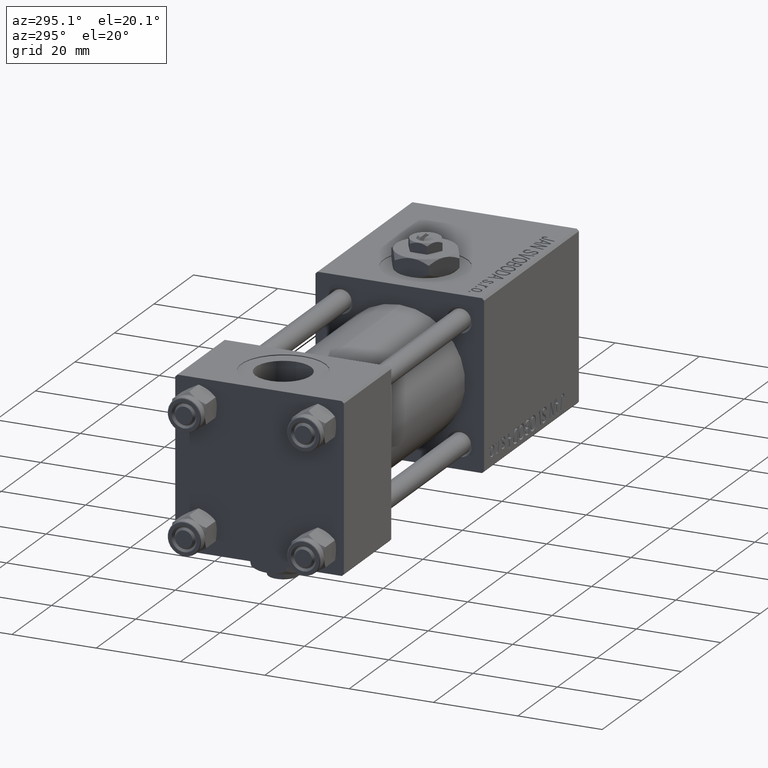
[diagram: clean part render]
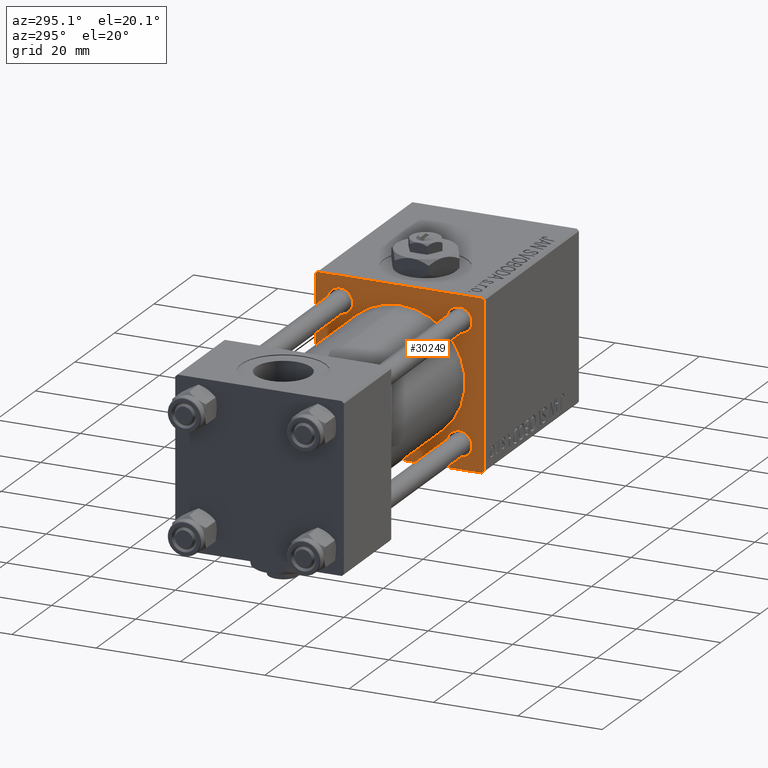
[diagram: same view with one face highlighted and labeled with its STEP entity id]
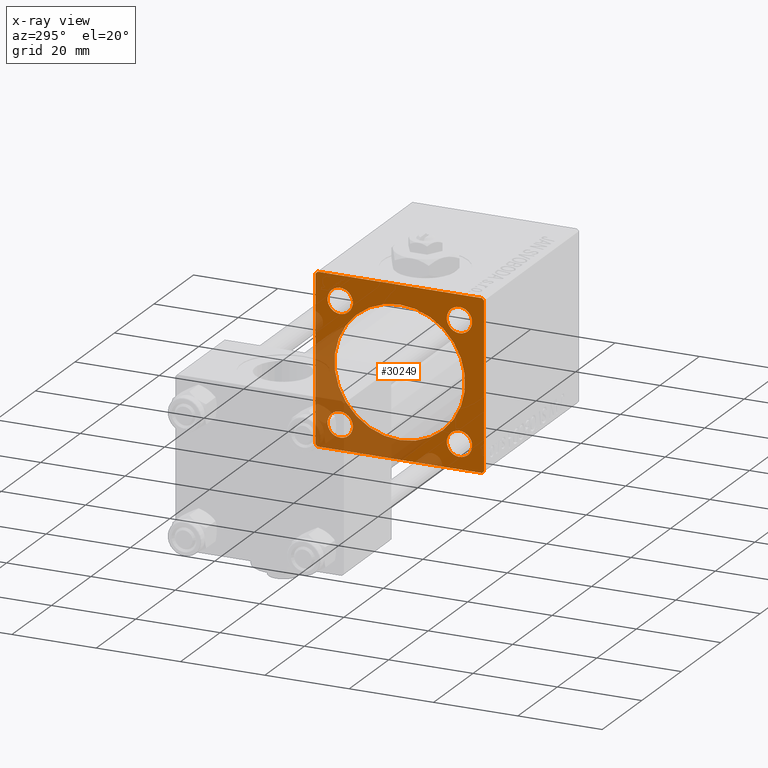
[diagram: x-ray of the same camera — body ghosted, the highlighted face saturated]
A machine part, auxiliary view. The second image highlights one B-rep face of the part: STEP entity #30249.
The next image is the same camera in x-ray: the body ghosted, the highlighted face saturated — about 34% of this face is hidden behind the body in this view.
In plain terms, the highlighted planar face has unit normal (-1, 0, 0).
Its self-contained STEP definition (entity closure, byte-faithful):
#269 = VERTEX_POINT ( 'NONE', #51191 ) ;
#615 = CARTESIAN_POINT ( 'NONE',  ( 71.00000000000001421, -14.15000000000000036, -11.14999999999999680 ) ) ;
#657 = CARTESIAN_POINT ( 'NONE',  ( 71.00000000000001421, -2.602085213965210642E-15, 15.50000000000000000 ) ) ;
#1223 = DIRECTION ( 'NONE',  ( 1.000000000000000000, 0.000000000000000000, 0.000000000000000000 ) ) ;
#1243 = ORIENTED_EDGE ( 'NONE', *, *, #9446, .T. ) ;
#1329 = CIRCLE ( 'NONE', #24086, 3.000000000000004441 ) ;
#1346 = VECTOR ( 'NONE', #46647, 1000.000000000000000 ) ;
#1348 = VERTEX_POINT ( 'NONE', #3505 ) ;
#1828 = CARTESIAN_POINT ( 'NONE',  ( 71.00000000000001421, -2.602085213965210642E-15, 0.000000000000000000 ) ) ;
#3505 = CARTESIAN_POINT ( 'NONE',  ( 71.00000000000001421, 14.15000000000000036, -11.14999999999999680 ) ) ;
#3839 = CIRCLE ( 'NONE', #51097, 3.000000000000004441 ) ;
#4044 = ORIENTED_EDGE ( 'NONE', *, *, #23475, .T. ) ;
#4257 = VECTOR ( 'NONE', #50291, 1000.000000000000000 ) ;
#4284 = VERTEX_POINT ( 'NONE', #4782 ) ;
#4351 = VERTEX_POINT ( 'NONE', #25128 ) ;
#4702 = AXIS2_PLACEMENT_3D ( 'NONE', #51190, #22361, #43511 ) ;
#4782 = CARTESIAN_POINT ( 'NONE',  ( 71.00000000000001421, 14.15000000000000036, 17.15000000000000568 ) ) ;
#6065 = EDGE_LOOP ( 'NONE', ( #4044, #27608 ) ) ;
#6719 = EDGE_LOOP ( 'NONE', ( #11631, #29959, #15529, #26702, #14496, #9053, #47710, #51587 ) ) ;
#7225 = VERTEX_POINT ( 'NONE', #49402 ) ;
#7309 = DIRECTION ( 'NONE',  ( 1.000000000000000000, 0.000000000000000000, 0.000000000000000000 ) ) ;
#7406 = EDGE_LOOP ( 'NONE', ( #13608, #16378 ) ) ;
#7478 = LINE ( 'NONE', #35777, #35143 ) ;
#7654 = EDGE_CURVE ( 'NONE', #38315, #24465, #31635, .T. ) ;
#8509 = VERTEX_POINT ( 'NONE', #22608 ) ;
#9053 = ORIENTED_EDGE ( 'NONE', *, *, #26230, .T. ) ;
#9119 = FACE_BOUND ( 'NONE', #20656, .T. ) ;
#9391 = CARTESIAN_POINT ( 'NONE',  ( 71.00000000000001421, 0.000000000000000000, 0.000000000000000000 ) ) ;
#9446 = EDGE_CURVE ( 'NONE', #34609, #4351, #19036, .T. ) ;
#10453 = CARTESIAN_POINT ( 'NONE',  ( 71.00000000000001421, -14.15000000000000036, 17.15000000000000568 ) ) ;
#10537 = DIRECTION ( 'NONE',  ( 1.000000000000000000, 0.000000000000000000, 0.000000000000000000 ) ) ;
#10916 = LINE ( 'NONE', #22528, #25846 ) ;
#11505 = AXIS2_PLACEMENT_3D ( 'NONE', #38563, #10537, #39598 ) ;
#11507 = EDGE_CURVE ( 'NONE', #45515, #48965, #32617, .T. ) ;
#11631 = ORIENTED_EDGE ( 'NONE', *, *, #36221, .T. ) ;
#12586 = VECTOR ( 'NONE', #24628, 1000.000000000000000 ) ;
#12765 = EDGE_CURVE ( 'NONE', #8509, #37266, #18299, .T. ) ;
#13354 = CARTESIAN_POINT ( 'NONE',  ( 71.00000000000001421, 19.74999999999999645, -19.74999999999999645 ) ) ;
#13608 = ORIENTED_EDGE ( 'NONE', *, *, #25094, .T. ) ;
#14158 = EDGE_CURVE ( 'NONE', #7225, #269, #49383, .T. ) ;
#14496 = ORIENTED_EDGE ( 'NONE', *, *, #33117, .F. ) ;
#14592 = DIRECTION ( 'NONE',  ( -0.000000000000000000, 0.7071067811865573427, 0.7071067811865376918 ) ) ;
#14769 = CARTESIAN_POINT ( 'NONE',  ( 71.00000000000001421, 14.15000000000000036, 11.14999999999999680 ) ) ;
#15529 = ORIENTED_EDGE ( 'NONE', *, *, #22200, .F. ) ;
#15681 = VERTEX_POINT ( 'NONE', #20808 ) ;
#15829 = CARTESIAN_POINT ( 'NONE',  ( 71.00000000000001421, -19.74999999999973710, 19.75000000000028422 ) ) ;
#16378 = ORIENTED_EDGE ( 'NONE', *, *, #25708, .T. ) ;
#16481 = CIRCLE ( 'NONE', #21534, 15.50000000000000000 ) ;
#16529 = VERTEX_POINT ( 'NONE', #44433 ) ;
#16632 = DIRECTION ( 'NONE',  ( 1.000000000000000000, 0.000000000000000000, 0.000000000000000000 ) ) ;
#16651 = ORIENTED_EDGE ( 'NONE', *, *, #40388, .T. ) ;
#16783 = DIRECTION ( 'NONE',  ( -1.000000000000000000, 0.000000000000000000, -0.000000000000000000 ) ) ;
#17440 = CIRCLE ( 'NONE', #11505, 3.000000000000004441 ) ;
#18121 = CARTESIAN_POINT ( 'NONE',  ( 71.00000000000001421, 14.15000000000000036, 14.15000000000000036 ) ) ;
#18299 = LINE ( 'NONE', #15829, #37637 ) ;
#18382 = DIRECTION ( 'NONE',  ( 1.000000000000000000, 0.000000000000000000, 0.000000000000000000 ) ) ;
#18625 = AXIS2_PLACEMENT_3D ( 'NONE', #18121, #18382, #34262 ) ;
#18718 = DIRECTION ( 'NONE',  ( 0.000000000000000000, 0.000000000000000000, -1.000000000000000000 ) ) ;
#18942 = CARTESIAN_POINT ( 'NONE',  ( 71.00000000000001421, 14.15000000000000036, 14.15000000000000036 ) ) ;
#19036 = CIRCLE ( 'NONE', #4702, 15.50000000000000000 ) ;
#19063 = CARTESIAN_POINT ( 'NONE',  ( 71.00000000000001421, -14.15000000000000036, 14.15000000000000036 ) ) ;
#20518 = CARTESIAN_POINT ( 'NONE',  ( 71.00000000000001421, 19.49999999999999645, -20.00000000000000000 ) ) ;
#20608 = EDGE_CURVE ( 'NONE', #269, #23780, #41906, .T. ) ;
#20656 = EDGE_LOOP ( 'NONE', ( #49036, #16651 ) ) ;
#20808 = CARTESIAN_POINT ( 'NONE',  ( 71.00000000000001421, -20.00000000000000000, -19.50000000000001066 ) ) ;
#21128 = CARTESIAN_POINT ( 'NONE',  ( 71.00000000000001421, -14.15000000000000036, 11.14999999999999503 ) ) ;
#21258 = DIRECTION ( 'NONE',  ( -0.000000000000000000, 0.000000000000000000, 1.000000000000000000 ) ) ;
#21301 = CARTESIAN_POINT ( 'NONE',  ( 71.00000000000001421, -14.15000000000000036, -14.15000000000000036 ) ) ;
#21534 = AXIS2_PLACEMENT_3D ( 'NONE', #1828, #30864, #18718 ) ;
#22200 = EDGE_CURVE ( 'NONE', #8509, #15681, #51025, .T. ) ;
#22361 = DIRECTION ( 'NONE',  ( 1.000000000000000000, 0.000000000000000000, 0.000000000000000000 ) ) ;
#22528 = CARTESIAN_POINT ( 'NONE',  ( 71.00000000000001421, -19.75000000000028066, -19.74999999999973355 ) ) ;
#22608 = CARTESIAN_POINT ( 'NONE',  ( 71.00000000000001421, -20.00000000000000355, 19.50000000000002487 ) ) ;
#22963 = EDGE_CURVE ( 'NONE', #16529, #15681, #10916, .T. ) ;
#23475 = EDGE_CURVE ( 'NONE', #48965, #45515, #3839, .T. ) ;
#23555 = EDGE_CURVE ( 'NONE', #4351, #34609, #16481, .T. ) ;
#23780 = VERTEX_POINT ( 'NONE', #20518 ) ;
#24086 = AXIS2_PLACEMENT_3D ( 'NONE', #45633, #30002, #29487 ) ;
#24091 = VECTOR ( 'NONE', #33448, 1000.000000000000114 ) ;
#24465 = VERTEX_POINT ( 'NONE', #46271 ) ;
#24554 = CARTESIAN_POINT ( 'NONE',  ( 71.00000000000001421, -14.15000000000000036, 14.15000000000000036 ) ) ;
#24628 = DIRECTION ( 'NONE',  ( 0.000000000000000000, -1.000000000000000000, -8.673617379884035472E-17 ) ) ;
#25089 = EDGE_LOOP ( 'NONE', ( #1243, #35962 ) ) ;
#25094 = EDGE_CURVE ( 'NONE', #1348, #40563, #1329, .T. ) ;
#25128 = CARTESIAN_POINT ( 'NONE',  ( 71.00000000000001421, -7.038826752868131828E-16, -15.50000000000000000 ) ) ;
#25543 = DIRECTION ( 'NONE',  ( 0.000000000000000000, 0.000000000000000000, 1.000000000000000000 ) ) ;
#25708 = EDGE_CURVE ( 'NONE', #40563, #1348, #17440, .T. ) ;
#25846 = VECTOR ( 'NONE', #47387, 999.9999999999998863 ) ;
#26230 = EDGE_CURVE ( 'NONE', #39823, #7225, #7478, .T. ) ;
#26702 = ORIENTED_EDGE ( 'NONE', *, *, #12765, .T. ) ;
#26859 = DIRECTION ( 'NONE',  ( 0.000000000000000000, 0.000000000000000000, 1.000000000000000000 ) ) ;
#27260 = CARTESIAN_POINT ( 'NONE',  ( 71.00000000000001421, -19.50000000000001776, 19.99999999999999645 ) ) ;
#27335 = CARTESIAN_POINT ( 'NONE',  ( 71.00000000000001421, -14.15000000000000036, -14.15000000000000036 ) ) ;
#27507 = DIRECTION ( 'NONE',  ( 0.000000000000000000, 0.000000000000000000, 1.000000000000000000 ) ) ;
#27608 = ORIENTED_EDGE ( 'NONE', *, *, #11507, .T. ) ;
#28114 = DIRECTION ( 'NONE',  ( 0.000000000000000000, 0.000000000000000000, 1.000000000000000000 ) ) ;
#29107 = CARTESIAN_POINT ( 'NONE',  ( 71.00000000000001421, 19.99999999999999645, 20.00000000000000000 ) ) ;
#29278 = CARTESIAN_POINT ( 'NONE',  ( 71.00000000000001421, 19.99999999999999645, 20.00000000000000000 ) ) ;
#29450 = FACE_BOUND ( 'NONE', #6065, .T. ) ;
#29487 = DIRECTION ( 'NONE',  ( 0.000000000000000000, 0.000000000000000000, 1.000000000000000000 ) ) ;
#29711 = FACE_BOUND ( 'NONE', #25089, .T. ) ;
#29733 = VERTEX_POINT ( 'NONE', #14769 ) ;
#29959 = ORIENTED_EDGE ( 'NONE', *, *, #22963, .T. ) ;
#30002 = DIRECTION ( 'NONE',  ( 1.000000000000000000, 0.000000000000000000, 0.000000000000000000 ) ) ;
#30249 = ADVANCED_FACE ( 'NONE', ( #29450, #41122, #37682, #9119, #29711, #33698 ), #37415, .T. ) ;
#30395 = CARTESIAN_POINT ( 'NONE',  ( 71.00000000000001421, -20.00000000000000355, 19.99999999999999645 ) ) ;
#30864 = DIRECTION ( 'NONE',  ( 1.000000000000000000, 0.000000000000000000, 0.000000000000000000 ) ) ;
#31635 = CIRCLE ( 'NONE', #35016, 3.000000000000004441 ) ;
#31895 = EDGE_CURVE ( 'NONE', #4284, #29733, #41289, .T. ) ;
#32301 = LINE ( 'NONE', #29107, #12586 ) ;
#32305 = DIRECTION ( 'NONE',  ( 0.000000000000000000, 0.7071067811865574537, -0.7071067811865376918 ) ) ;
#32315 = ORIENTED_EDGE ( 'NONE', *, *, #49891, .T. ) ;
#32617 = CIRCLE ( 'NONE', #50251, 3.000000000000004441 ) ;
#33117 = EDGE_CURVE ( 'NONE', #39823, #37266, #32301, .T. ) ;
#33448 = DIRECTION ( 'NONE',  ( -0.000000000000000000, -0.7071067811865474617, -0.7071067811865474617 ) ) ;
#33551 = DIRECTION ( 'NONE',  ( 0.000000000000000000, 0.000000000000000000, 1.000000000000000000 ) ) ;
#33576 = ORIENTED_EDGE ( 'NONE', *, *, #31895, .T. ) ;
#33698 = FACE_OUTER_BOUND ( 'NONE', #6719, .T. ) ;
#34262 = DIRECTION ( 'NONE',  ( 0.000000000000000000, 0.000000000000000000, 1.000000000000000000 ) ) ;
#34609 = VERTEX_POINT ( 'NONE', #657 ) ;
#35016 = AXIS2_PLACEMENT_3D ( 'NONE', #21301, #1223, #25543 ) ;
#35143 = VECTOR ( 'NONE', #32305, 999.9999999999998863 ) ;
#35502 = CARTESIAN_POINT ( 'NONE',  ( 71.00000000000001421, 14.15000000000000036, -17.15000000000000568 ) ) ;
#35545 = AXIS2_PLACEMENT_3D ( 'NONE', #27335, #36350, #28114 ) ;
#35777 = CARTESIAN_POINT ( 'NONE',  ( 71.00000000000001421, 19.74999999999971578, 19.75000000000026290 ) ) ;
#35962 = ORIENTED_EDGE ( 'NONE', *, *, #23555, .T. ) ;
#36221 = EDGE_CURVE ( 'NONE', #23780, #16529, #37888, .T. ) ;
#36350 = DIRECTION ( 'NONE',  ( 1.000000000000000000, 0.000000000000000000, 0.000000000000000000 ) ) ;
#37010 = EDGE_LOOP ( 'NONE', ( #33576, #32315 ) ) ;
#37266 = VERTEX_POINT ( 'NONE', #27260 ) ;
#37415 = PLANE ( 'NONE',  #44589 ) ;
#37637 = VECTOR ( 'NONE', #14592, 1000.000000000000114 ) ;
#37682 = FACE_BOUND ( 'NONE', #7406, .T. ) ;
#37888 = LINE ( 'NONE', #41852, #4257 ) ;
#38315 = VERTEX_POINT ( 'NONE', #615 ) ;
#38563 = CARTESIAN_POINT ( 'NONE',  ( 71.00000000000001421, 14.15000000000000036, -14.15000000000000036 ) ) ;
#38612 = CARTESIAN_POINT ( 'NONE',  ( 71.00000000000001421, 19.49999999999996803, 20.00000000000000000 ) ) ;
#39435 = DIRECTION ( 'NONE',  ( 1.000000000000000000, 0.000000000000000000, 0.000000000000000000 ) ) ;
#39586 = AXIS2_PLACEMENT_3D ( 'NONE', #18942, #7309, #26859 ) ;
#39598 = DIRECTION ( 'NONE',  ( 0.000000000000000000, 0.000000000000000000, 1.000000000000000000 ) ) ;
#39823 = VERTEX_POINT ( 'NONE', #38612 ) ;
#40388 = EDGE_CURVE ( 'NONE', #24465, #38315, #49917, .T. ) ;
#40563 = VERTEX_POINT ( 'NONE', #35502 ) ;
#41122 = FACE_BOUND ( 'NONE', #37010, .T. ) ;
#41289 = CIRCLE ( 'NONE', #39586, 3.000000000000004441 ) ;
#41442 = CIRCLE ( 'NONE', #18625, 3.000000000000004441 ) ;
#41852 = CARTESIAN_POINT ( 'NONE',  ( 71.00000000000001421, 19.99999999999999645, -20.00000000000000000 ) ) ;
#41906 = LINE ( 'NONE', #13354, #24091 ) ;
#42831 = DIRECTION ( 'NONE',  ( 0.000000000000000000, 8.673617379884036705E-17, -1.000000000000000000 ) ) ;
#43511 = DIRECTION ( 'NONE',  ( 0.000000000000000000, 0.000000000000000000, -1.000000000000000000 ) ) ;
#44433 = CARTESIAN_POINT ( 'NONE',  ( 71.00000000000001421, -19.50000000000002487, -20.00000000000000000 ) ) ;
#44589 = AXIS2_PLACEMENT_3D ( 'NONE', #9391, #16783, #21258 ) ;
#45515 = VERTEX_POINT ( 'NONE', #21128 ) ;
#45633 = CARTESIAN_POINT ( 'NONE',  ( 71.00000000000001421, 14.15000000000000036, -14.15000000000000036 ) ) ;
#46120 = VECTOR ( 'NONE', #42831, 1000.000000000000000 ) ;
#46271 = CARTESIAN_POINT ( 'NONE',  ( 71.00000000000001421, -14.15000000000000036, -17.15000000000000568 ) ) ;
#46647 = DIRECTION ( 'NONE',  ( 0.000000000000000000, 0.000000000000000000, -1.000000000000000000 ) ) ;
#47387 = DIRECTION ( 'NONE',  ( 0.000000000000000000, -0.7071067811865376918, 0.7071067811865574537 ) ) ;
#47710 = ORIENTED_EDGE ( 'NONE', *, *, #14158, .T. ) ;
#48965 = VERTEX_POINT ( 'NONE', #10453 ) ;
#49036 = ORIENTED_EDGE ( 'NONE', *, *, #7654, .T. ) ;
#49383 = LINE ( 'NONE', #29278, #1346 ) ;
#49402 = CARTESIAN_POINT ( 'NONE',  ( 71.00000000000001421, 19.99999999999999645, 19.49999999999998579 ) ) ;
#49891 = EDGE_CURVE ( 'NONE', #29733, #4284, #41442, .T. ) ;
#49917 = CIRCLE ( 'NONE', #35545, 3.000000000000004441 ) ;
#50251 = AXIS2_PLACEMENT_3D ( 'NONE', #19063, #39435, #27507 ) ;
#50291 = DIRECTION ( 'NONE',  ( 0.000000000000000000, -1.000000000000000000, 0.000000000000000000 ) ) ;
#51025 = LINE ( 'NONE', #30395, #46120 ) ;
#51097 = AXIS2_PLACEMENT_3D ( 'NONE', #24554, #16632, #33551 ) ;
#51190 = CARTESIAN_POINT ( 'NONE',  ( 71.00000000000001421, -2.602085213965210642E-15, 0.000000000000000000 ) ) ;
#51191 = CARTESIAN_POINT ( 'NONE',  ( 71.00000000000001421, 19.99999999999999645, -19.50000000000000000 ) ) ;
#51587 = ORIENTED_EDGE ( 'NONE', *, *, #20608, .T. ) ;